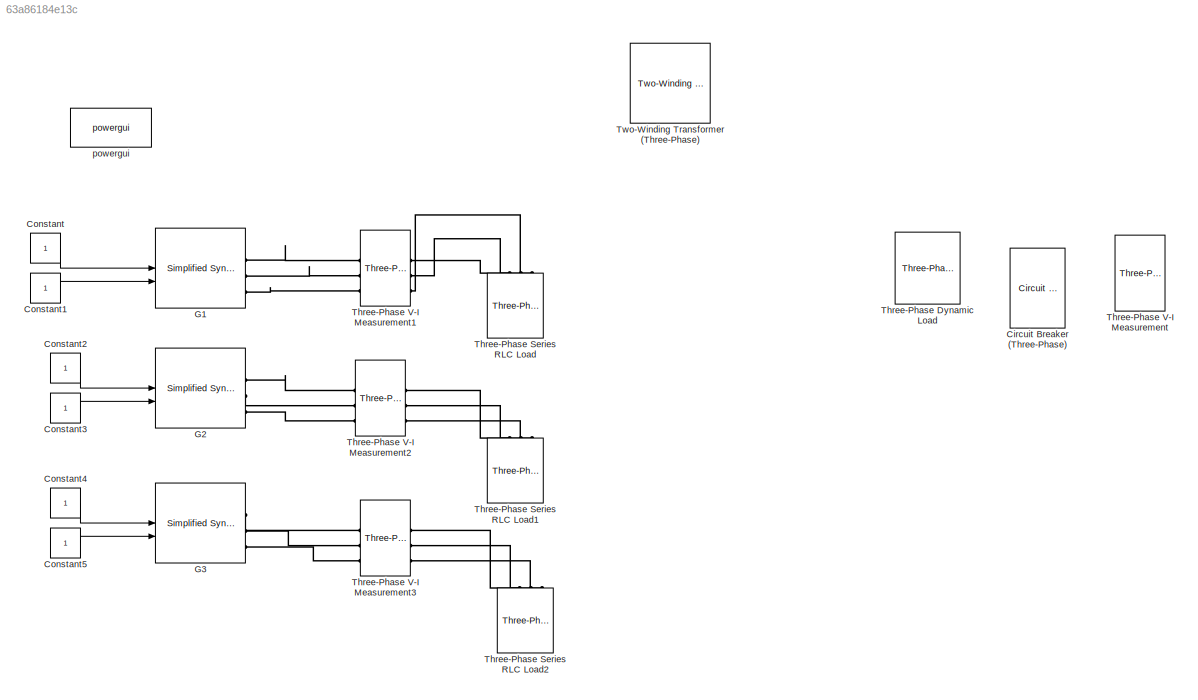
MODEL slx_63a86184e13c
KIND model
CONFIG AbsTol = auto
CONFIG EnableMultiTasking = off
CONFIG FixedStep = auto
CONFIG MaxStep = auto
CONFIG MinStep = auto
CONFIG RelTol = 1e-3
CONFIG SampleTimeConstraint = Unconstrained
CONFIG SolverName = VariableStepAuto
CONFIG StartTime = 0.0
CONFIG StopTime = 10.0
BLOCK [Reference] Circuit Breaker (Three-Phase)  REF=ee_lib/Switches & Breakers/Circuit Breaker
(Three-Phase)
  SourceBlock = ee_lib/Switches & Breakers/Circuit Breaker\n(Three-Phase)
  SourceType = Circuit Breaker\n(Three-Phase)
BLOCK [Constant] Constant
BLOCK [Constant] Constant1
BLOCK [Constant] Constant2
BLOCK [Constant] Constant3
BLOCK [Constant] Constant4
BLOCK [Constant] Constant5
BLOCK [Reference] G1  REF=spsSimplifiedSynchronousMachineSIUnitsLib/Simplified Synchronous
Machine SI Units
  LibrarySourceBlock = sps_lib/Electrical Machines/Simplified Synchronous\nMachine SI Units
  SourceBlock = spsSimplifiedSynchronousMachineSIUnitsLib/Simplified Synchronous\nMachine SI Units
  SourceType = Simplified Synchronous Machine
BLOCK [Reference] G2  REF=spsSimplifiedSynchronousMachineSIUnitsLib/Simplified Synchronous
Machine SI Units
  LibrarySourceBlock = sps_lib/Electrical Machines/Simplified Synchronous\nMachine SI Units
  SourceBlock = spsSimplifiedSynchronousMachineSIUnitsLib/Simplified Synchronous\nMachine SI Units
  SourceType = Simplified Synchronous Machine
BLOCK [Reference] G3  REF=spsSimplifiedSynchronousMachineSIUnitsLib/Simplified Synchronous
Machine SI Units
  LibrarySourceBlock = sps_lib/Electrical Machines/Simplified Synchronous\nMachine SI Units
  SourceBlock = spsSimplifiedSynchronousMachineSIUnitsLib/Simplified Synchronous\nMachine SI Units
  SourceType = Simplified Synchronous Machine
BLOCK [Reference] Three-Phase Dynamic Load  REF=spsThreePhaseDynamicLoadLib/Three-Phase
Dynamic Load
  LibrarySourceBlock = sps_lib/Passives/Three-Phase\nDynamic Load
  SourceBlock = spsThreePhaseDynamicLoadLib/Three-Phase\nDynamic Load
  SourceType = Three-Phase Dynamic Load
BLOCK [Reference] Three-Phase Series RLC Load  REF=spsThreePhaseSeriesRLCLoadLib/Three-Phase
Series RLC Load
  AttributesFormatString = \n
  LibrarySourceBlock = sps_lib/Passives/Three-Phase\nSeries RLC Load
  SourceBlock = spsThreePhaseSeriesRLCLoadLib/Three-Phase\nSeries RLC Load
  SourceType = Three-Phase Series RLC Load
BLOCK [Reference] Three-Phase Series RLC Load1  REF=spsThreePhaseSeriesRLCLoadLib/Three-Phase
Series RLC Load
  AttributesFormatString = \n
  LibrarySourceBlock = sps_lib/Passives/Three-Phase\nSeries RLC Load
  SourceBlock = spsThreePhaseSeriesRLCLoadLib/Three-Phase\nSeries RLC Load
  SourceType = Three-Phase Series RLC Load
BLOCK [Reference] Three-Phase Series RLC Load2  REF=spsThreePhaseSeriesRLCLoadLib/Three-Phase
Series RLC Load
  AttributesFormatString = \n
  LibrarySourceBlock = sps_lib/Passives/Three-Phase\nSeries RLC Load
  SourceBlock = spsThreePhaseSeriesRLCLoadLib/Three-Phase\nSeries RLC Load
  SourceType = Three-Phase Series RLC Load
BLOCK [Reference] Three-Phase V-I Measurement  REF=spsThreePhaseVIMeasurementLib/Three-Phase
V-I Measurement
  LibrarySourceBlock = sps_lib/Sensors and Measurements/Three-Phase\nV-I Measurement
  SourceBlock = spsThreePhaseVIMeasurementLib/Three-Phase\nV-I Measurement
  SourceType = Three-Phase VI Measurement
BLOCK [Reference] Three-Phase V-I Measurement1  REF=spsThreePhaseVIMeasurementLib/Three-Phase
V-I Measurement
  LibrarySourceBlock = sps_lib/Sensors and Measurements/Three-Phase\nV-I Measurement
  SourceBlock = spsThreePhaseVIMeasurementLib/Three-Phase\nV-I Measurement
  SourceType = Three-Phase VI Measurement
BLOCK [Reference] Three-Phase V-I Measurement2  REF=spsThreePhaseVIMeasurementLib/Three-Phase
V-I Measurement
  LibrarySourceBlock = sps_lib/Sensors and Measurements/Three-Phase\nV-I Measurement
  SourceBlock = spsThreePhaseVIMeasurementLib/Three-Phase\nV-I Measurement
  SourceType = Three-Phase VI Measurement
BLOCK [Reference] Three-Phase V-I Measurement3  REF=spsThreePhaseVIMeasurementLib/Three-Phase
V-I Measurement
  LibrarySourceBlock = sps_lib/Sensors and Measurements/Three-Phase\nV-I Measurement
  SourceBlock = spsThreePhaseVIMeasurementLib/Three-Phase\nV-I Measurement
  SourceType = Three-Phase VI Measurement
BLOCK [Reference] Two-Winding Transformer (Three-Phase)  REF=ee_lib/Passive/Transformers/Two-Winding
Transformer
(Three-Phase)
  SourceBlock = ee_lib/Passive/Transformers/Two-Winding\nTransformer\n(Three-Phase)
  SourceType = Two-Winding\nTransformer\n(Three-Phase)
BLOCK [Reference] powergui  REF=spspowerguiLib/powergui
  LibrarySourceBlock = sps_lib/powergui
  Priority = 1
  SourceBlock = spspowerguiLib/powergui
  SourceType = PSB option menu block
LINE Constant1:1 -> G1:2
LINE Constant2:1 -> G2:1
LINE Constant3:1 -> G2:2
LINE Constant4:1 -> G3:1
LINE Constant5:1 -> G3:2
LINE Constant:1 -> G1:1
PLINE G1:RConn1 -- Three-Phase V-I Measurement1:LConn1
PLINE G1:RConn2 -- Three-Phase V-I Measurement1:LConn2
PLINE G1:RConn3 -- Three-Phase V-I Measurement1:LConn3
PLINE G2:RConn1 -- Three-Phase V-I Measurement2:LConn1
PLINE G2:RConn2 -- Three-Phase V-I Measurement2:LConn2
PLINE G2:RConn3 -- Three-Phase V-I Measurement2:LConn3
PLINE G3:RConn1 -- Three-Phase V-I Measurement3:LConn1
PLINE G3:RConn2 -- Three-Phase V-I Measurement3:LConn2
PLINE G3:RConn3 -- Three-Phase V-I Measurement3:LConn3
PLINE Three-Phase Series RLC Load1:LConn1 -- Three-Phase V-I Measurement2:RConn1
PLINE Three-Phase Series RLC Load1:LConn2 -- Three-Phase V-I Measurement2:RConn2
PLINE Three-Phase Series RLC Load1:LConn3 -- Three-Phase V-I Measurement2:RConn3
PLINE Three-Phase Series RLC Load2:LConn1 -- Three-Phase V-I Measurement3:RConn1
PLINE Three-Phase Series RLC Load2:LConn2 -- Three-Phase V-I Measurement3:RConn2
PLINE Three-Phase Series RLC Load2:LConn3 -- Three-Phase V-I Measurement3:RConn3
PLINE Three-Phase Series RLC Load:LConn1 -- Three-Phase V-I Measurement1:RConn1
PLINE Three-Phase Series RLC Load:LConn2 -- Three-Phase V-I Measurement1:RConn2
PLINE Three-Phase Series RLC Load:LConn3 -- Three-Phase V-I Measurement1:RConn3
